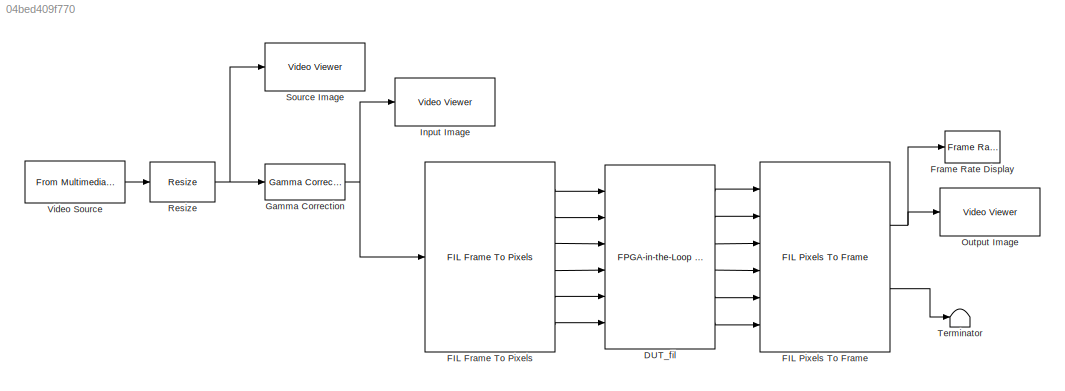
MODEL slx_04bed409f770
KIND model
CONFIG AbsTol = auto
CONFIG FixedStep = auto
CONFIG MaxStep = auto
CONFIG MinStep = auto
CONFIG PreLoadFcn = H = fspecial('unsharp')
CONFIG RelTol = 1e-3
CONFIG SampleTimeConstraint = Unconstrained
CONFIG Solver = ode45
CONFIG SolverMode = Auto
CONFIG SolverName = ode45
CONFIG StartTime = 0.0
CONFIG StopTime = 10.0
BLOCK [Reference] DUT_fil  REF=fillib/FPGA-in-the-Loop (FIL)
  Ports = [6, 6]
  SourceBlock = fillib/FPGA-in-the-Loop (FIL)
  SourceType = FPGA-in-the-Loop (FIL)
  UserDataPersistent = on
BLOCK [Reference] FIL Frame To Pixels  REF=visionhdlio/FIL Frame To Pixels
  Ports = [1, 6]
  SourceBlock = visionhdlio/FIL Frame To Pixels
  SourceType = FIL Frame To Pixels
BLOCK [Reference] FIL Pixels To Frame  REF=visionhdlio/FIL Pixels To Frame
  Ports = [6, 2]
  SourceBlock = visionhdlio/FIL Pixels To Frame
  SourceType = FIL Pixels To Frame
BLOCK [Reference] Frame Rate Display  REF=visionsinks/Frame Rate
Display
  Ports = [1]
  SourceBlock = visionsinks/Frame Rate\nDisplay
  SourceType = Frame Rate Display
BLOCK [Reference] Gamma Correction  REF=visionconversions/Gamma Correction
  Ports = [1, 1]
  SourceBlock = visionconversions/Gamma Correction
  SourceType = Gamma Correction
BLOCK [Reference] Input Image  REF=visionsinks/Video Viewer
  Ports = [1]
  SourceBlock = visionsinks/Video Viewer
  SourceType = Video Viewer
  UserDataPersistent = on
BLOCK [Reference] Output Image  REF=visionsinks/Video Viewer
  Ports = [1]
  SourceBlock = visionsinks/Video Viewer
  SourceType = Video Viewer
  UserDataPersistent = on
BLOCK [Reference] Resize  REF=visiongeotforms/Resize
  Ports = [1, 1]
  SourceBlock = visiongeotforms/Resize
  SourceType = Resize
BLOCK [Reference] Source Image  REF=visionsinks/Video Viewer
  Ports = [1]
  SourceBlock = visionsinks/Video Viewer
  SourceType = Video Viewer
  UserDataPersistent = on
BLOCK [Terminator] Terminator
BLOCK [Reference] Video Source  REF=dspvision/From Multimedia File
  Ports = [0, 1]
  SourceBlock = dspvision/From Multimedia File
  SourceType = From Multimedia File
LINE DUT_fil:1 -> FIL Pixels To Frame:1
LINE DUT_fil:2 -> FIL Pixels To Frame:2
LINE DUT_fil:3 -> FIL Pixels To Frame:3
LINE DUT_fil:4 -> FIL Pixels To Frame:4
LINE DUT_fil:5 -> FIL Pixels To Frame:5
LINE DUT_fil:6 -> FIL Pixels To Frame:6
LINE FIL Frame To Pixels:1 -> DUT_fil:1
LINE FIL Frame To Pixels:2 -> DUT_fil:2
LINE FIL Frame To Pixels:3 -> DUT_fil:3
LINE FIL Frame To Pixels:4 -> DUT_fil:4
LINE FIL Frame To Pixels:5 -> DUT_fil:5
LINE FIL Frame To Pixels:6 -> DUT_fil:6
NET FIL Pixels To Frame:1 -> Frame Rate Display:1, Output Image:1
LINE FIL Pixels To Frame:2 -> Terminator:1
NET Gamma Correction:1 -> FIL Frame To Pixels:1, Input Image:1
NET Resize:1 -> Gamma Correction:1, Source Image:1
LINE Video Source:1 -> Resize:1
note: NET lines group one-source signal fan-out (src -> all destinations, sorted); 1:1 wires keep LINE
